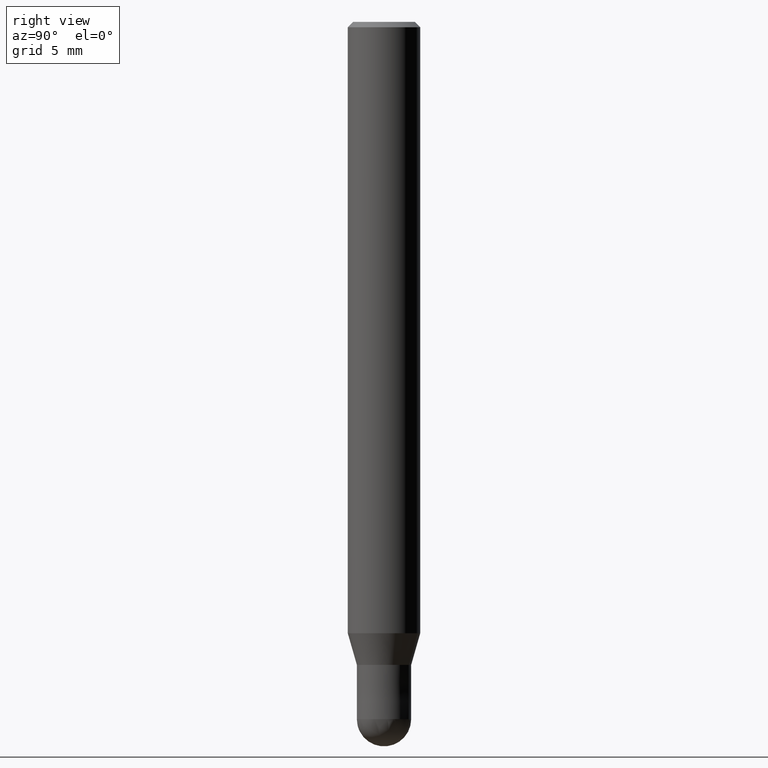
[diagram: clean part render]
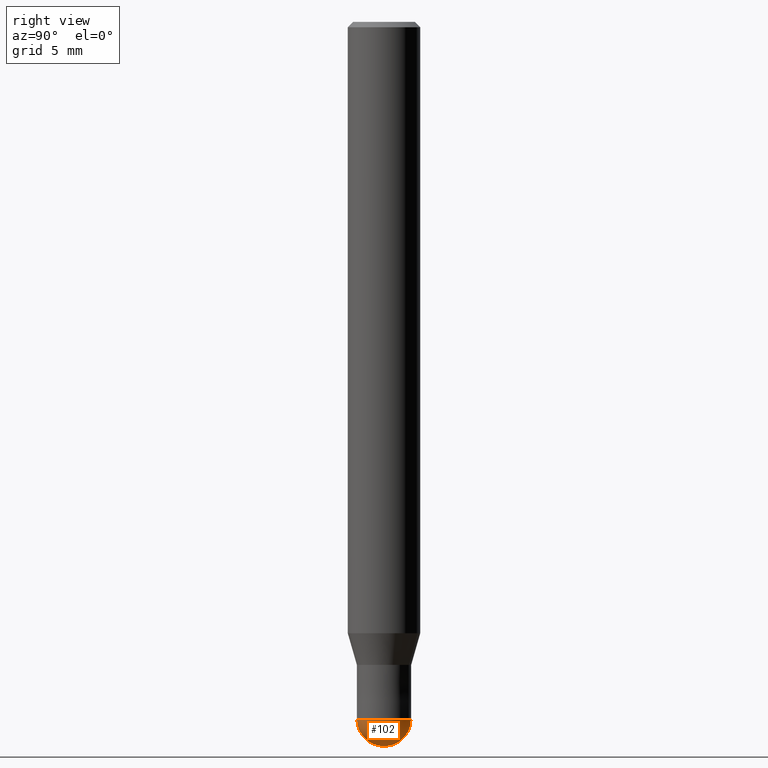
[diagram: same view with one face highlighted and labeled with its STEP entity id]
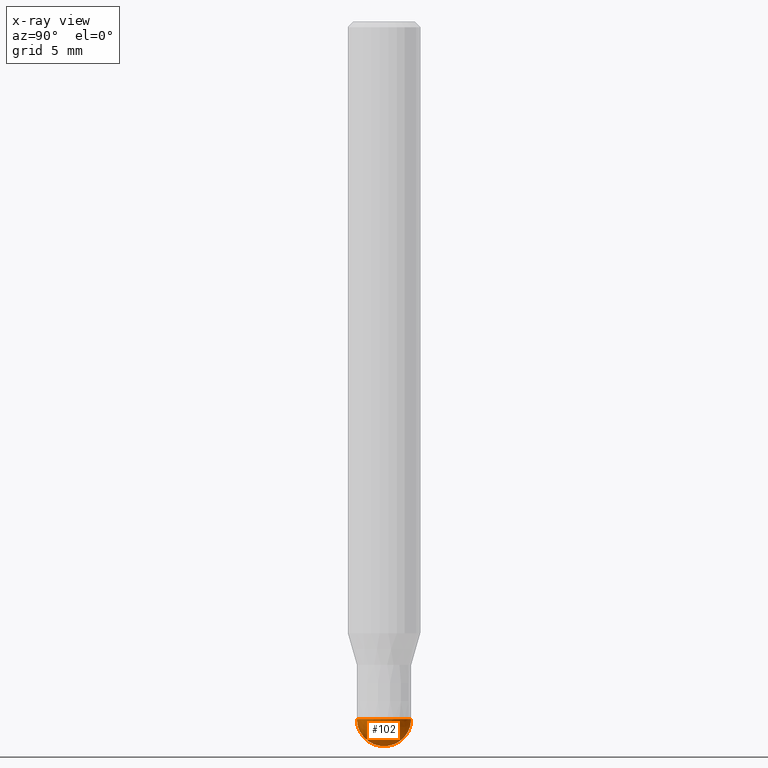
[diagram: x-ray of the same camera — body ghosted, the highlighted face saturated]
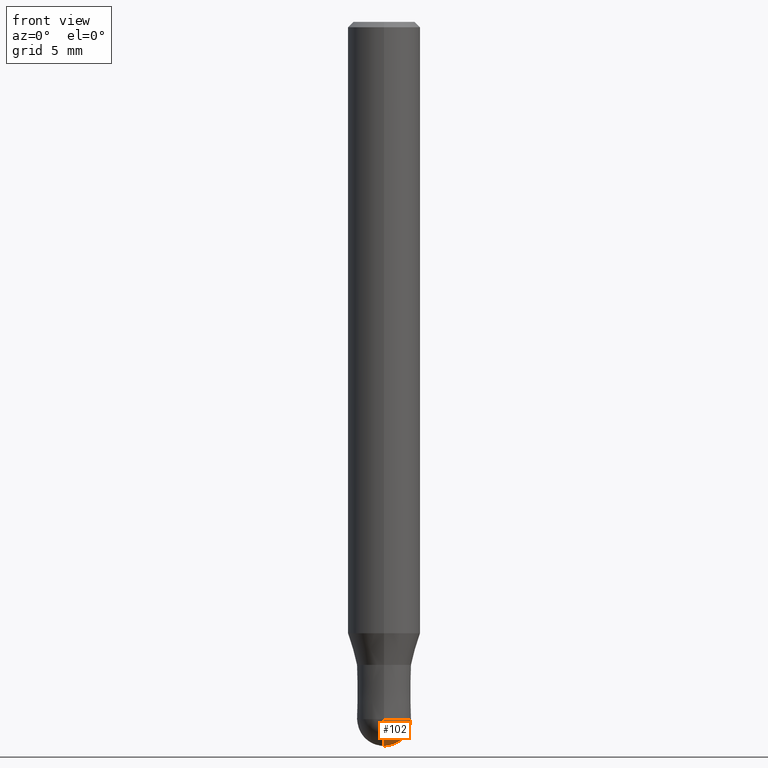
[diagram: same view with one face highlighted and labeled with its STEP entity id]
A machine part, right view. The second image highlights one B-rep face of the part: STEP entity #102.
The next image is the same camera in x-ray: the body ghosted, the highlighted face saturated — about 0% of this face is hidden behind the body in this view.
A second angle (front view) of the same face is appended — the face is thin or edge-on in the first view.
In plain terms, the highlighted spherical surface has radius 1.5 mm.
Its self-contained STEP definition (entity closure, byte-faithful):
#88=VERTEX_POINT('',#213);
#102=ADVANCED_FACE('',(#227),#228,.T.);
#118=EDGE_CURVE('',#88,#138,#248,.T.);
#138=VERTEX_POINT('',#270);
#160=EDGE_CURVE('',#138,#88,#297,.T.);
#213=CARTESIAN_POINT('',(1.83690953073357E-016,-1.5,-38.5));
#227=FACE_OUTER_BOUND('',#363,.T.);
#228=SPHERICAL_SURFACE('',#364,1.5);
#248=CIRCLE('',#389,1.5);
#270=CARTESIAN_POINT('',(0.0,1.5,-38.5));
#297=CIRCLE('',#447,1.5);
#363=EDGE_LOOP('',(#501,#502));
#364=AXIS2_PLACEMENT_3D('',#503,#504,#505);
#389=AXIS2_PLACEMENT_3D('',#543,#544,#545);
#447=AXIS2_PLACEMENT_3D('',#601,#602,#603);
#501=ORIENTED_EDGE('',*,*,#118,.T.);
#502=ORIENTED_EDGE('',*,*,#160,.T.);
#503=CARTESIAN_POINT('',(0.0,0.0,-38.5));
#504=DIRECTION('',(0.0,1.0,0.0));
#505=DIRECTION('',(0.0,0.0,-1.0));
#543=CARTESIAN_POINT('',(0.0,0.0,-38.5));
#544=DIRECTION('',(1.0,0.0,1.22460635382238E-016));
#545=DIRECTION('',(-1.22460635382238E-016,0.0,1.0));
#601=CARTESIAN_POINT('',(0.0,0.0,-38.5));
#602=DIRECTION('',(0.0,0.0,-1.0));
#603=DIRECTION('',(0.0,1.0,0.0));